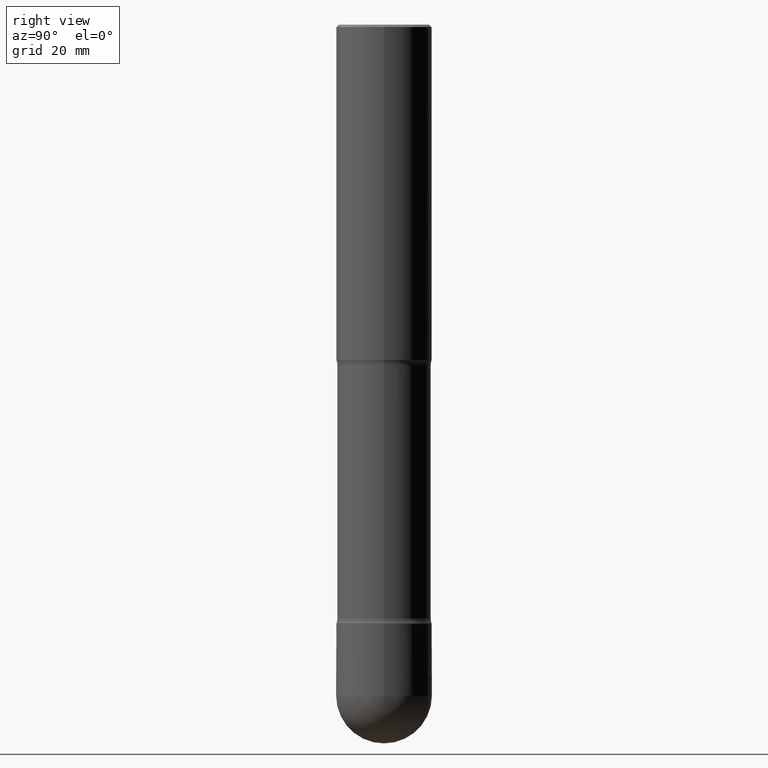
[diagram: clean part render]
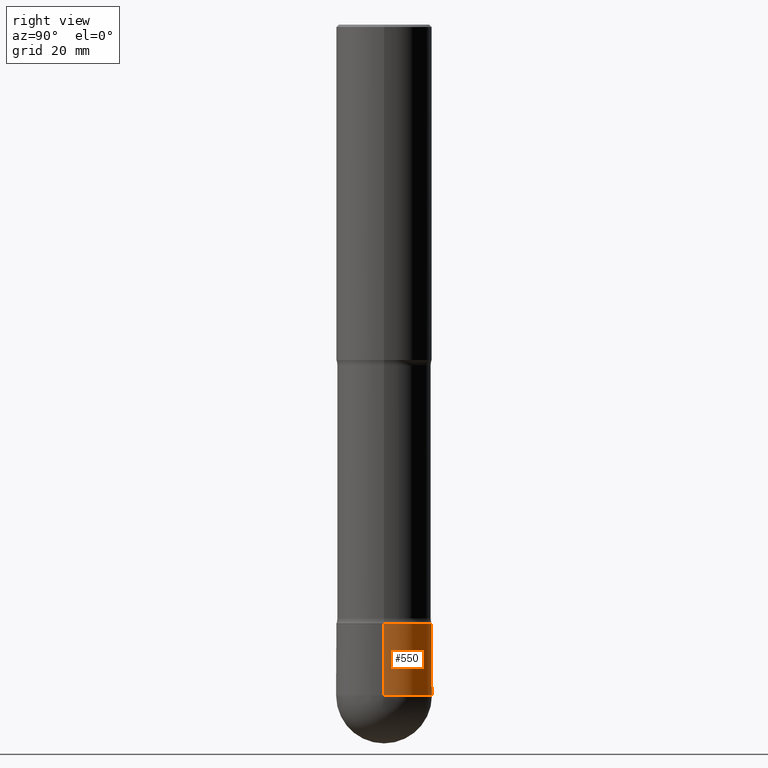
[diagram: same view with one face highlighted and labeled with its STEP entity id]
A machine part, right view. The second image highlights one B-rep face of the part: STEP entity #550.
In plain terms, the highlighted cylindrical surface (partial cylindrical patch) has radius 10 mm, axis along (-0, 0, 1).
Its self-contained STEP definition (entity closure, byte-faithful):
#4 = DIRECTION ( 'NONE',  ( -2.445468806185136877E-29, 3.491481338843145188E-15, 1.000000000000000000 ) ) ;
#7 = CARTESIAN_POINT ( 'NONE',  ( -0.3936999999999989952, -1.541590565338776243E-14, -5.511800000000000033 ) ) ;
#14 = EDGE_CURVE ( 'NONE', #499, #369, #384, .T. ) ;
#21 = AXIS2_PLACEMENT_3D ( 'NONE', #487, #92, #270 ) ;
#42 = VERTEX_POINT ( 'NONE', #136 ) ;
#65 = DIRECTION ( 'NONE',  ( 1.000000000000000000, -6.982962677686266711E-15, 0.000000000000000000 ) ) ;
#92 = DIRECTION ( 'NONE',  ( -2.445468806185136597E-29, 3.491481338843145583E-15, 1.000000000000000000 ) ) ;
#98 = DIRECTION ( 'NONE',  ( -2.445468806185136597E-29, 3.491481338843145583E-15, 1.000000000000000000 ) ) ;
#99 = DIRECTION ( 'NONE',  ( 1.000000000000000000, -6.982962677686266711E-15, 0.000000000000000000 ) ) ;
#136 = CARTESIAN_POINT ( 'NONE',  ( -0.3936999999999991617, -1.541590565338776243E-14, -4.921199999999999797 ) ) ;
#138 = CARTESIAN_POINT ( 'NONE',  ( 1.203464108899829379E-28, -1.718227796471488830E-14, -4.921199999999999797 ) ) ;
#146 = CARTESIAN_POINT ( 'NONE',  ( 0.3936999999999989952, -2.096250481028034702E-14, -5.511800000000000033 ) ) ;
#153 = ORIENTED_EDGE ( 'NONE', *, *, #220, .T. ) ;
#157 = VECTOR ( 'NONE', #257, 39.37007874015748143 ) ;
#158 = AXIS2_PLACEMENT_3D ( 'NONE', #305, #483, #99 ) ;
#166 = EDGE_LOOP ( 'NONE', ( #447, #350, #306, #525, #153 ) ) ;
#204 = AXIS2_PLACEMENT_3D ( 'NONE', #138, #98, #554 ) ;
#210 = CARTESIAN_POINT ( 'NONE',  ( -0.3936999999999990507, 2.797406750687507687E-15, -1.936584745033351971E-29 ) ) ;
#211 = CIRCLE ( 'NONE', #462, 0.3936999999999989952 ) ;
#213 = CARTESIAN_POINT ( 'NONE',  ( 1.347893496593123646E-28, -1.924434684343564878E-14, -5.511800000000000033 ) ) ;
#216 = FACE_OUTER_BOUND ( 'NONE', #166, .T. ) ;
#220 = EDGE_CURVE ( 'NONE', #499, #251, #211, .T. ) ;
#251 = VERTEX_POINT ( 'NONE', #276 ) ;
#257 = DIRECTION ( 'NONE',  ( -2.445468806185136877E-29, 3.491481338843145188E-15, 1.000000000000000000 ) ) ;
#270 = DIRECTION ( 'NONE',  ( 1.000000000000000000, -6.982962677686266711E-15, 4.876176775795935232E-29 ) ) ;
#276 = CARTESIAN_POINT ( 'NONE',  ( 2.749192406205212195E-15, 0.3936999999999799549, -5.511800000000000921 ) ) ;
#305 = CARTESIAN_POINT ( 'NONE',  ( 1.347893496593123646E-28, -1.924434684343564878E-14, -5.511800000000000033 ) ) ;
#306 = ORIENTED_EDGE ( 'NONE', *, *, #405, .F. ) ;
#326 = DIRECTION ( 'NONE',  ( -2.445468806185136597E-29, 3.491481338843145583E-15, 1.000000000000000000 ) ) ;
#340 = CARTESIAN_POINT ( 'NONE',  ( 0.3936999999999990507, -2.749192406205076511E-15, 1.919750796630855127E-29 ) ) ;
#350 = ORIENTED_EDGE ( 'NONE', *, *, #498, .T. ) ;
#369 = VERTEX_POINT ( 'NONE', #528 ) ;
#384 = LINE ( 'NONE', #340, #157 ) ;
#405 = EDGE_CURVE ( 'NONE', #369, #42, #443, .T. ) ;
#407 = LINE ( 'NONE', #210, #423 ) ;
#423 = VECTOR ( 'NONE', #4, 39.37007874015748143 ) ;
#443 = CIRCLE ( 'NONE', #204, 0.3936999999999991617 ) ;
#447 = ORIENTED_EDGE ( 'NONE', *, *, #505, .T. ) ;
#462 = AXIS2_PLACEMENT_3D ( 'NONE', #213, #326, #65 ) ;
#473 = CIRCLE ( 'NONE', #158, 0.3936999999999989952 ) ;
#483 = DIRECTION ( 'NONE',  ( -2.445468806185136597E-29, 3.491481338843145583E-15, 1.000000000000000000 ) ) ;
#487 = CARTESIAN_POINT ( 'NONE',  ( 0.000000000000000000, 0.000000000000000000, 0.000000000000000000 ) ) ;
#498 = EDGE_CURVE ( 'NONE', #566, #42, #407, .T. ) ;
#499 = VERTEX_POINT ( 'NONE', #146 ) ;
#505 = EDGE_CURVE ( 'NONE', #251, #566, #473, .T. ) ;
#523 = CYLINDRICAL_SURFACE ( 'NONE', #21, 0.3936999999999990507 ) ;
#525 = ORIENTED_EDGE ( 'NONE', *, *, #14, .F. ) ;
#528 = CARTESIAN_POINT ( 'NONE',  ( 0.3936999999999991617, -1.993147037091996521E-14, -4.921199999999999797 ) ) ;
#550 = ADVANCED_FACE ( 'NONE', ( #216 ), #523, .T. ) ;
#554 = DIRECTION ( 'NONE',  ( 1.000000000000000000, -6.982962677686268288E-15, 0.000000000000000000 ) ) ;
#566 = VERTEX_POINT ( 'NONE', #7 ) ;